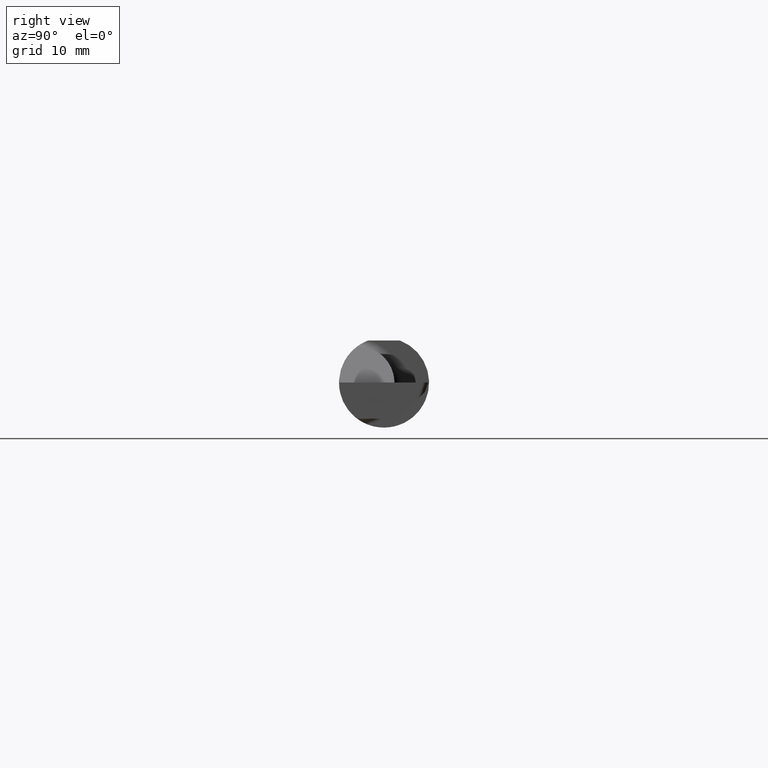
[diagram: clean part render]
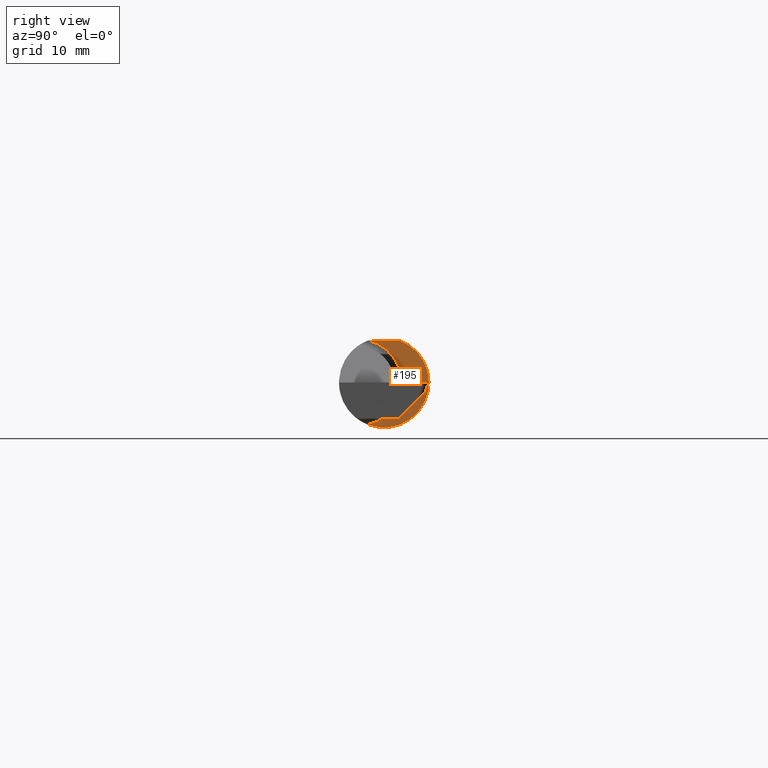
[diagram: same view with one face highlighted and labeled with its STEP entity id]
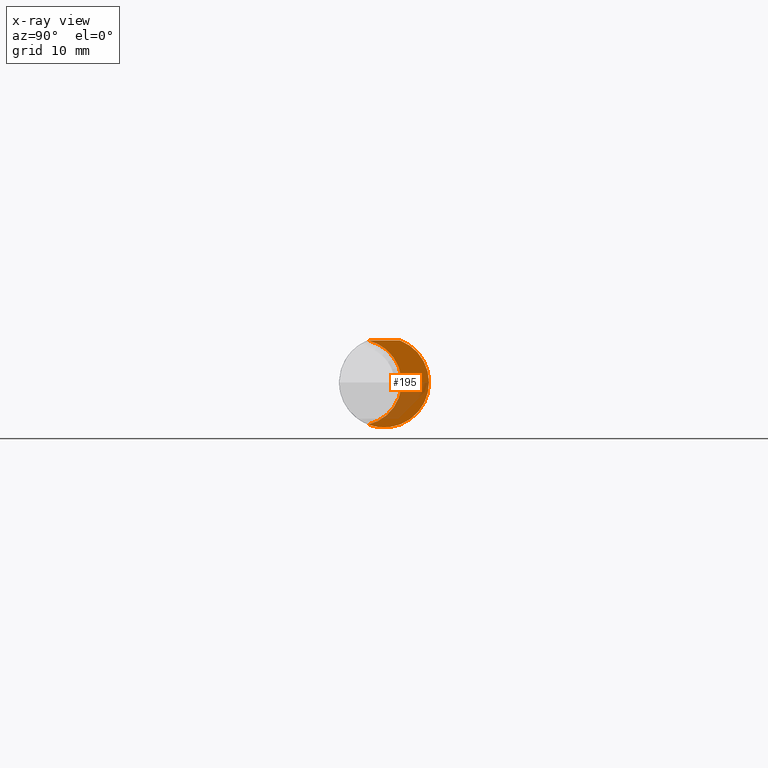
[diagram: x-ray of the same camera — body ghosted, the highlighted face saturated]
A machine part, right view. The second image highlights one B-rep face of the part: STEP entity #195.
The next image is the same camera in x-ray: the body ghosted, the highlighted face saturated — about 30% of this face is hidden behind the body in this view.
In plain terms, the highlighted planar face has unit normal (1, 0, 0).
Its self-contained STEP definition (entity closure, byte-faithful):
#41 = CARTESIAN_POINT ( 'NONE',  ( 1.699999999999999956, -0.05497272050753934658, 0.1460999999999998689 ) ) ;
#58 = EDGE_CURVE ( 'NONE', #686, #552, #266, .T. ) ;
#63 = CARTESIAN_POINT ( 'NONE',  ( 1.699999999999999956, 0.000000000000000000, 0.000000000000000000 ) ) ;
#64 = ORIENTED_EDGE ( 'NONE', *, *, #549, .T. ) ;
#96 = DIRECTION ( 'NONE',  ( 0.000000000000000000, 0.000000000000000000, -1.000000000000000000 ) ) ;
#98 = CARTESIAN_POINT ( 'NONE',  ( 1.699999999999999956, 0.05497272050753933964, 0.1460999999999998689 ) ) ;
#111 = VERTEX_POINT ( 'NONE', #346 ) ;
#125 = VECTOR ( 'NONE', #605, 39.37007874015748143 ) ;
#133 = DIRECTION ( 'NONE',  ( 1.000000000000000000, 0.000000000000000000, 0.000000000000000000 ) ) ;
#155 = DIRECTION ( 'NONE',  ( 1.000000000000000000, 0.000000000000000000, 0.000000000000000000 ) ) ;
#158 = PLANE ( 'NONE',  #782 ) ;
#168 = ORIENTED_EDGE ( 'NONE', *, *, #58, .F. ) ;
#181 = DIRECTION ( 'NONE',  ( -1.000000000000000000, -0.000000000000000000, -0.000000000000000000 ) ) ;
#195 = ADVANCED_FACE ( 'NONE', ( #526 ), #158, .T. ) ;
#206 = AXIS2_PLACEMENT_3D ( 'NONE', #791, #181, #802 ) ;
#223 = AXIS2_PLACEMENT_3D ( 'NONE', #63, #133, #313 ) ;
#229 = DIRECTION ( 'NONE',  ( 1.000000000000000000, 0.000000000000000000, 0.000000000000000000 ) ) ;
#266 = LINE ( 'NONE', #777, #125 ) ;
#280 = CARTESIAN_POINT ( 'NONE',  ( 1.699999999999999956, 0.000000000000000000, 0.000000000000000000 ) ) ;
#291 = DIRECTION ( 'NONE',  ( 0.000000000000000000, 0.000000000000000000, -1.000000000000000000 ) ) ;
#313 = DIRECTION ( 'NONE',  ( 0.000000000000000000, 0.000000000000000000, -1.000000000000000000 ) ) ;
#346 = CARTESIAN_POINT ( 'NONE',  ( 1.699999999999999956, -0.05502817059483729872, 0.1460791239054556601 ) ) ;
#355 = EDGE_CURVE ( 'NONE', #687, #552, #770, .T. ) ;
#372 = EDGE_LOOP ( 'NONE', ( #439, #168, #64, #415 ) ) ;
#415 = ORIENTED_EDGE ( 'NONE', *, *, #622, .T. ) ;
#439 = ORIENTED_EDGE ( 'NONE', *, *, #355, .T. ) ;
#482 = CIRCLE ( 'NONE', #534, 0.1560999999999999888 ) ;
#526 = FACE_OUTER_BOUND ( 'NONE', #372, .T. ) ;
#534 = AXIS2_PLACEMENT_3D ( 'NONE', #280, #229, #291 ) ;
#549 = EDGE_CURVE ( 'NONE', #686, #111, #482, .T. ) ;
#552 = VERTEX_POINT ( 'NONE', #98 ) ;
#605 = DIRECTION ( 'NONE',  ( 0.000000000000000000, 1.000000000000000000, 0.000000000000000000 ) ) ;
#622 = EDGE_CURVE ( 'NONE', #111, #687, #717, .T. ) ;
#655 = CARTESIAN_POINT ( 'NONE',  ( 1.699999999999999956, 0.1560999999999998777, 0.000000000000000000 ) ) ;
#686 = VERTEX_POINT ( 'NONE', #41 ) ;
#687 = VERTEX_POINT ( 'NONE', #797 ) ;
#717 = CIRCLE ( 'NONE', #206, 0.1499999999999999667 ) ;
#770 = CIRCLE ( 'NONE', #223, 0.1560999999999999888 ) ;
#777 = CARTESIAN_POINT ( 'NONE',  ( 1.699999999999999956, 0.1560999999999999888, 0.1460999999999998689 ) ) ;
#782 = AXIS2_PLACEMENT_3D ( 'NONE', #655, #155, #96 ) ;
#791 = CARTESIAN_POINT ( 'NONE',  ( 1.699999999999999956, -0.08910000000000001252, 0.000000000000000000 ) ) ;
#797 = CARTESIAN_POINT ( 'NONE',  ( 1.699999999999999956, -0.05502817059483729872, -0.1460791239054556601 ) ) ;
#802 = DIRECTION ( 'NONE',  ( 0.000000000000000000, 0.000000000000000000, 1.000000000000000000 ) ) ;